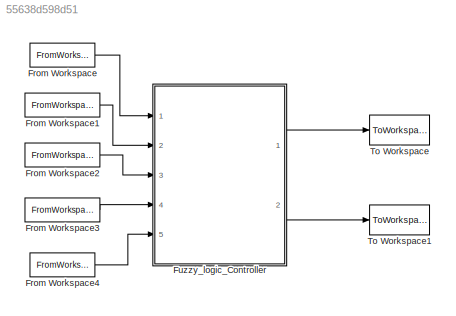
MODEL slx_55638d598d51
KIND model
CONFIG AbsTol = auto
CONFIG FixedStep = 0.1
CONFIG MaxStep = auto
CONFIG MinStep = auto
CONFIG RelTol = 1e-3
CONFIG SampleTimeConstraint = Unconstrained
CONFIG Solver = ode3
CONFIG SolverMode = Auto
CONFIG SolverName = ode3
CONFIG StartTime = 0.0
CONFIG StopTime = 5
BLOCK [FromWorkspace] From Workspace
  SampleTime = 1
  VariableName = long_vel
  ZeroCross = on
BLOCK [FromWorkspace] From Workspace1
  SampleTime = 1
  VariableName = steering_angle
  ZeroCross = on
BLOCK [FromWorkspace] From Workspace2
  SampleTime = 1
  VariableName = yaw_rate
  ZeroCross = on
BLOCK [FromWorkspace] From Workspace3
  SampleTime = 1
  VariableName = slip_ratio_fl
  ZeroCross = on
BLOCK [FromWorkspace] From Workspace4
  SampleTime = 1
  VariableName = lat_vel
  ZeroCross = on
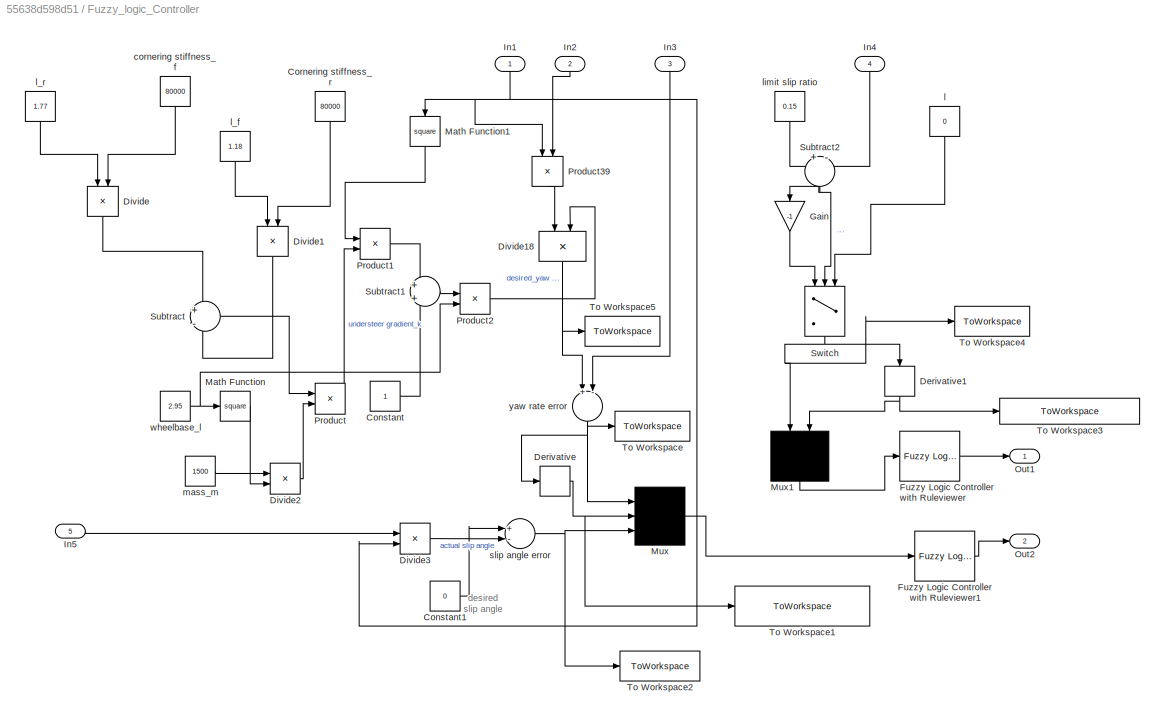
BLOCK [SubSystem] Fuzzy_logic_Controller
  Ports = [5, 2]
  RequestExecContextInheritance = off
BLOCK [Constant] Fuzzy_logic_Controller/Constant
BLOCK [Constant] Fuzzy_logic_Controller/Constant1
  Value = 0
BLOCK [Constant] Fuzzy_logic_Controller/Cornering stiffness_r 
  Value = 80000
BLOCK [Derivative] Fuzzy_logic_Controller/Derivative
BLOCK [Derivative] Fuzzy_logic_Controller/Derivative1
BLOCK [Product] Fuzzy_logic_Controller/Divide
  InputSameDT = off
  Inputs = */
  OutDataTypeStr = Inherit: Inherit via internal rule
  Ports = [2, 1]
  RndMeth = Floor
  SaturateOnIntegerOverflow = off
BLOCK [Product] Fuzzy_logic_Controller/Divide1
  InputSameDT = off
  Inputs = */
  OutDataTypeStr = Inherit: Inherit via internal rule
  Ports = [2, 1]
  RndMeth = Floor
  SaturateOnIntegerOverflow = off
BLOCK [Product] Fuzzy_logic_Controller/Divide18
  InputSameDT = off
  Inputs = */
  OutDataTypeStr = Inherit: Inherit via internal rule
  Ports = [2, 1]
  RndMeth = Floor
  SaturateOnIntegerOverflow = off
BLOCK [Product] Fuzzy_logic_Controller/Divide2
  InputSameDT = off
  Inputs = */
  OutDataTypeStr = Inherit: Inherit via internal rule
  Ports = [2, 1]
  RndMeth = Floor
  SaturateOnIntegerOverflow = off
BLOCK [Product] Fuzzy_logic_Controller/Divide3
  InputSameDT = off
  Inputs = */
  OutDataTypeStr = Inherit: Inherit via internal rule
  Ports = [2, 1]
  RndMeth = Floor
  SaturateOnIntegerOverflow = off
BLOCK [Reference] Fuzzy_logic_Controller/Fuzzy Logic Controller with Ruleviewer  REF=fuzblock/Fuzzy Logic   (lib defined in mdl_858b3b3e7478)
Controller 
with Ruleviewer
  Ports = [1, 1]
  SourceBlock = fuzblock/Fuzzy Logic \nController \nwith Ruleviewer
  SourceType = FIS
  Ts = 2
  fismatrix = fuzzy_slip_ratio
BLOCK [Reference] Fuzzy_logic_Controller/Fuzzy Logic Controller with Ruleviewer1  REF=fuzblock/Fuzzy Logic   (lib defined in mdl_858b3b3e7478)
Controller 
with Ruleviewer
  Ports = [1, 1]
  SourceBlock = fuzblock/Fuzzy Logic \nController \nwith Ruleviewer
  SourceType = FIS
  Ts = 2
  fismatrix = fuzzy_yaw_rate
BLOCK [Gain] Fuzzy_logic_Controller/Gain
  Gain = -1
  OutDataTypeStr = Inherit: Inherit via internal rule
  ParamDataTypeStr = Inherit: Inherit via internal rule
  SaturateOnIntegerOverflow = off
BLOCK [Inport] Fuzzy_logic_Controller/In1
  IconDisplay = Port number
BLOCK [Inport] Fuzzy_logic_Controller/In2
  IconDisplay = Port number
  Port = 2
BLOCK [Inport] Fuzzy_logic_Controller/In3
  IconDisplay = Port number
  Port = 3
BLOCK [Inport] Fuzzy_logic_Controller/In4
  IconDisplay = Port number
  Port = 4
BLOCK [Inport] Fuzzy_logic_Controller/In5
  IconDisplay = Port number
  Port = 5
BLOCK [Math] Fuzzy_logic_Controller/Math Function
  Operator = square
  Ports = [1, 1]
BLOCK [Math] Fuzzy_logic_Controller/Math Function1
  Operator = square
  Ports = [1, 1]
BLOCK [Mux] Fuzzy_logic_Controller/Mux
  Inputs = 3
  Ports = [3, 1]
BLOCK [Mux] Fuzzy_logic_Controller/Mux1
  Inputs = 2
  Ports = [2, 1]
BLOCK [Outport] Fuzzy_logic_Controller/Out1
  IconDisplay = Port number
BLOCK [Outport] Fuzzy_logic_Controller/Out2
  IconDisplay = Port number
  Port = 2
BLOCK [Product] Fuzzy_logic_Controller/Product
  InputSameDT = off
  OutDataTypeStr = Inherit: Inherit via internal rule
  Ports = [2, 1]
  RndMeth = Floor
  SaturateOnIntegerOverflow = off
BLOCK [Product] Fuzzy_logic_Controller/Product1
  InputSameDT = off
  OutDataTypeStr = Inherit: Inherit via internal rule
  Ports = [2, 1]
  RndMeth = Floor
  SaturateOnIntegerOverflow = off
BLOCK [Product] Fuzzy_logic_Controller/Product2
  InputSameDT = off
  OutDataTypeStr = Inherit: Inherit via internal rule
  Ports = [2, 1]
  RndMeth = Floor
  SaturateOnIntegerOverflow = off
BLOCK [Product] Fuzzy_logic_Controller/Product39
  InputSameDT = off
  OutDataTypeStr = Inherit: Inherit via internal rule
  Ports = [2, 1]
  RndMeth = Floor
  SaturateOnIntegerOverflow = off
BLOCK [Sum] Fuzzy_logic_Controller/Subtract
  IconShape = round
  InputSameDT = off
  Inputs = +-
  OutDataTypeStr = Inherit: Inherit via internal rule
  Ports = [2, 1]
  SaturateOnIntegerOverflow = off
BLOCK [Sum] Fuzzy_logic_Controller/Subtract1
  IconShape = round
  InputSameDT = off
  OutDataTypeStr = Inherit: Inherit via internal rule
  Ports = [2, 1]
  SaturateOnIntegerOverflow = off
BLOCK [Sum] Fuzzy_logic_Controller/Subtract2
  IconShape = round
  InputSameDT = off
  Inputs = +-
  OutDataTypeStr = Inherit: Inherit via internal rule
  Ports = [2, 1]
  SaturateOnIntegerOverflow = off
BLOCK [Switch] Fuzzy_logic_Controller/Switch
  Criteria = u2 > Threshold
  InputSameDT = off
  SaturateOnIntegerOverflow = off
  Threshold = 0.15
BLOCK [ToWorkspace] Fuzzy_logic_Controller/To Workspace
  FixptAsFi = on
  MaxDataPoints = inf
  Ports = [1]
  SampleTime = 1
  Save2DSignal = 3-D array (concatenate along third dimension)
  SaveFormat = Timeseries
  VariableName = error_yaw_rate
BLOCK [ToWorkspace] Fuzzy_logic_Controller/To Workspace1
  FixptAsFi = on
  MaxDataPoints = inf
  Ports = [1]
  SampleTime = 1
  Save2DSignal = 3-D array (concatenate along third dimension)
  SaveFormat = Timeseries
  VariableName = derivative_error_yaw_rate
BLOCK [ToWorkspace] Fuzzy_logic_Controller/To Workspace2
  FixptAsFi = on
  MaxDataPoints = inf
  Ports = [1]
  SampleTime = 1
  Save2DSignal = 3-D array (concatenate along third dimension)
  SaveFormat = Timeseries
  VariableName = error_slip_angle
BLOCK [ToWorkspace] Fuzzy_logic_Controller/To Workspace3
  FixptAsFi = on
  MaxDataPoints = inf
  Ports = [1]
  SampleTime = 1
  Save2DSignal = 3-D array (concatenate along third dimension)
  SaveFormat = Timeseries
  VariableName = derivative_error_slip_ratio
BLOCK [ToWorkspace] Fuzzy_logic_Controller/To Workspace4
  FixptAsFi = on
  MaxDataPoints = inf
  Ports = [1]
  SampleTime = 1
  Save2DSignal = 3-D array (concatenate along third dimension)
  SaveFormat = Timeseries
  VariableName = error_slip_ratio
BLOCK [ToWorkspace] Fuzzy_logic_Controller/To Workspace5
  FixptAsFi = on
  MaxDataPoints = inf
  Ports = [1]
  SampleTime = 1
  Save2DSignal = 3-D array (concatenate along third dimension)
  SaveFormat = Timeseries
  VariableName = desired_yaw_rate
BLOCK [Constant] Fuzzy_logic_Controller/cornering stiffness_f 
  Value = 80000
BLOCK [Constant] Fuzzy_logic_Controller/l
  Value = 0
BLOCK [Constant] Fuzzy_logic_Controller/l_f 
  Value = 1.18
BLOCK [Constant] Fuzzy_logic_Controller/l_r 
  Value = 1.77
BLOCK [Constant] Fuzzy_logic_Controller/limit slip ratio
  Value = 0.15
BLOCK [Constant] Fuzzy_logic_Controller/mass_m
  Value = 1500
BLOCK [Sum] Fuzzy_logic_Controller/slip angle error  
  InputSameDT = off
  Inputs = +-
  OutDataTypeStr = Inherit: Inherit via internal rule
  Ports = [2, 1]
  SaturateOnIntegerOverflow = off
BLOCK [Constant] Fuzzy_logic_Controller/wheelbase_l
  Value = 2.95
BLOCK [Sum] Fuzzy_logic_Controller/yaw rate error   
  InputSameDT = off
  Inputs = +-
  OutDataTypeStr = Inherit: Inherit via internal rule
  Ports = [2, 1]
  SaturateOnIntegerOverflow = off
BLOCK [ToWorkspace] To Workspace
  FixptAsFi = on
  MaxDataPoints = inf
  Ports = [1]
  SampleTime = -1
  Save2DSignal = 3-D array (concatenate along third dimension)
  SaveFormat = Timeseries
  VariableName = Tc_fr
BLOCK [ToWorkspace] To Workspace1
  FixptAsFi = on
  MaxDataPoints = inf
  Ports = [1]
  SampleTime = -1
  Save2DSignal = 3-D array (concatenate along third dimension)
  SaveFormat = Timeseries
  VariableName = Tc_lr
ANNOTATION Fuzzy_logic_Controller: desired slip angle
LINE From Workspace1:1 -> Fuzzy_logic_Controller:2
LINE From Workspace2:1 -> Fuzzy_logic_Controller:3
LINE From Workspace3:1 -> Fuzzy_logic_Controller:4
LINE From Workspace4:1 -> Fuzzy_logic_Controller:5
LINE From Workspace:1 -> Fuzzy_logic_Controller:1
LINE Fuzzy_logic_Controller/Constant1:1 -> Fuzzy_logic_Controller/slip angle error  :1
LINE Fuzzy_logic_Controller/Constant:1 -> Fuzzy_logic_Controller/Subtract1:2
LINE Fuzzy_logic_Controller/Cornering stiffness_r :1 -> Fuzzy_logic_Controller/Divide1:2
NET Fuzzy_logic_Controller/Derivative1:1 -> Fuzzy_logic_Controller/Mux1:2, Fuzzy_logic_Controller/To Workspace3:1
NET Fuzzy_logic_Controller/Derivative:1 -> Fuzzy_logic_Controller/Mux:2, Fuzzy_logic_Controller/To Workspace1:1
NET Fuzzy_logic_Controller/Divide18:1 -> Fuzzy_logic_Controller/To Workspace5:1, Fuzzy_logic_Controller/yaw rate error   :1
LINE Fuzzy_logic_Controller/Divide1:1 -> Fuzzy_logic_Controller/Subtract:2
LINE Fuzzy_logic_Controller/Divide2:1 -> Fuzzy_logic_Controller/Product:2
LINE Fuzzy_logic_Controller/Divide3:1 -> Fuzzy_logic_Controller/slip angle error  :2
LINE Fuzzy_logic_Controller/Divide:1 -> Fuzzy_logic_Controller/Subtract:1
LINE Fuzzy_logic_Controller/Fuzzy Logic Controller with Ruleviewer1:1 -> Fuzzy_logic_Controller/Out2:1
LINE Fuzzy_logic_Controller/Fuzzy Logic Controller with Ruleviewer:1 -> Fuzzy_logic_Controller/Out1:1
LINE Fuzzy_logic_Controller/Gain:1 -> Fuzzy_logic_Controller/Switch:1
NET Fuzzy_logic_Controller/In1:1 -> Fuzzy_logic_Controller/Divide3:2, Fuzzy_logic_Controller/Math Function1:1, Fuzzy_logic_Controller/Product39:1
LINE Fuzzy_logic_Controller/In2:1 -> Fuzzy_logic_Controller/Product39:2
LINE Fuzzy_logic_Controller/In3:1 -> Fuzzy_logic_Controller/yaw rate error   :2
LINE Fuzzy_logic_Controller/In4:1 -> Fuzzy_logic_Controller/Subtract2:2
LINE Fuzzy_logic_Controller/In5:1 -> Fuzzy_logic_Controller/Divide3:1
LINE Fuzzy_logic_Controller/Math Function1:1 -> Fuzzy_logic_Controller/Product1:1
LINE Fuzzy_logic_Controller/Math Function:1 -> Fuzzy_logic_Controller/Divide2:2
LINE Fuzzy_logic_Controller/Mux1:1 -> Fuzzy_logic_Controller/Fuzzy Logic Controller with Ruleviewer:1
LINE Fuzzy_logic_Controller/Mux:1 -> Fuzzy_logic_Controller/Fuzzy Logic Controller with Ruleviewer1:1
LINE Fuzzy_logic_Controller/Product1:1 -> Fuzzy_logic_Controller/Subtract1:1
LINE Fuzzy_logic_Controller/Product2:1 -> Fuzzy_logic_Controller/Divide18:2
LINE Fuzzy_logic_Controller/Product39:1 -> Fuzzy_logic_Controller/Divide18:1
LINE Fuzzy_logic_Controller/Product:1 -> Fuzzy_logic_Controller/Product1:2
LINE Fuzzy_logic_Controller/Subtract1:1 -> Fuzzy_logic_Controller/Product2:1
NET Fuzzy_logic_Controller/Subtract2:1 -> Fuzzy_logic_Controller/Gain:1, Fuzzy_logic_Controller/Switch:2
LINE Fuzzy_logic_Controller/Subtract:1 -> Fuzzy_logic_Controller/Product:1
NET Fuzzy_logic_Controller/Switch:1 -> Fuzzy_logic_Controller/Derivative1:1, Fuzzy_logic_Controller/Mux1:1, Fuzzy_logic_Controller/To Workspace4:1
LINE Fuzzy_logic_Controller/cornering stiffness_f :1 -> Fuzzy_logic_Controller/Divide:2
LINE Fuzzy_logic_Controller/l:1 -> Fuzzy_logic_Controller/Switch:3
LINE Fuzzy_logic_Controller/l_f :1 -> Fuzzy_logic_Controller/Divide1:1
LINE Fuzzy_logic_Controller/l_r :1 -> Fuzzy_logic_Controller/Divide:1
LINE Fuzzy_logic_Controller/limit slip ratio:1 -> Fuzzy_logic_Controller/Subtract2:1
LINE Fuzzy_logic_Controller/mass_m:1 -> Fuzzy_logic_Controller/Divide2:1
NET Fuzzy_logic_Controller/slip angle error  :1 -> Fuzzy_logic_Controller/Mux:3, Fuzzy_logic_Controller/To Workspace2:1
NET Fuzzy_logic_Controller/wheelbase_l:1 -> Fuzzy_logic_Controller/Math Function:1, Fuzzy_logic_Controller/Product2:2
NET Fuzzy_logic_Controller/yaw rate error   :1 -> Fuzzy_logic_Controller/Derivative:1, Fuzzy_logic_Controller/Mux:1, Fuzzy_logic_Controller/To Workspace:1
LINE Fuzzy_logic_Controller:1 -> To Workspace:1
LINE Fuzzy_logic_Controller:2 -> To Workspace1:1
note: NET lines group one-source signal fan-out (src -> all destinations, sorted); 1:1 wires keep LINE
